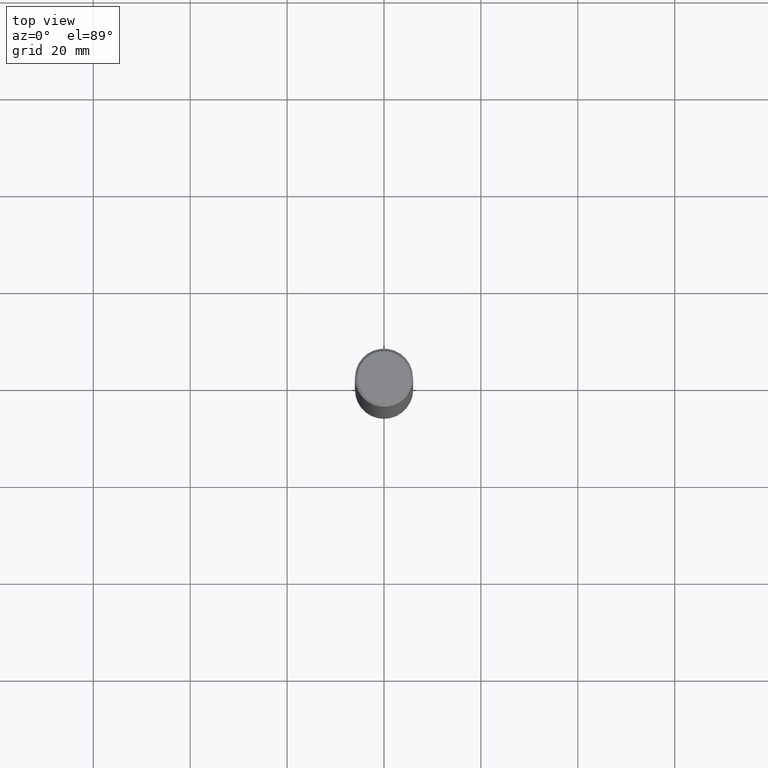
[diagram: clean part render]
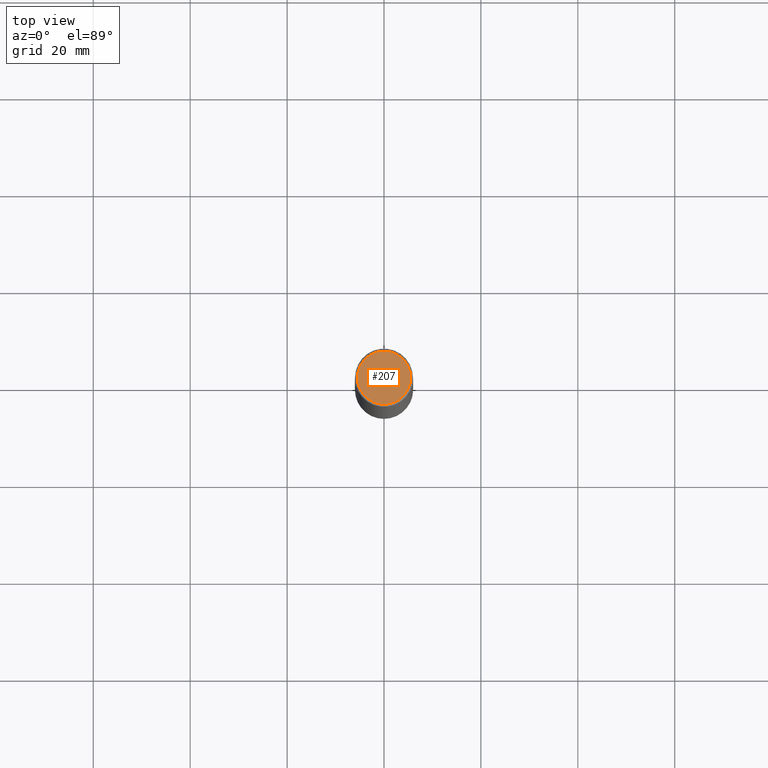
[diagram: same view with one face highlighted and labeled with its STEP entity id]
A machine part, top view. The second image highlights one B-rep face of the part: STEP entity #207.
In plain terms, the highlighted planar face has unit normal (0, -0, -1).
Its self-contained STEP definition (entity closure, byte-faithful):
#8 = DIRECTION ( 'NONE',  ( 2.438088387897960049E-29, -3.491481338843145188E-15, -1.000000000000000000 ) ) ;
#19 = EDGE_LOOP ( 'NONE', ( #152, #25 ) ) ;
#25 = ORIENTED_EDGE ( 'NONE', *, *, #53, .T. ) ;
#43 = CIRCLE ( 'NONE', #276, 0.2162000000000001421 ) ;
#53 = EDGE_CURVE ( 'NONE', #304, #371, #43, .T. ) ;
#73 = CARTESIAN_POINT ( 'NONE',  ( -0.2162000000000001421, 1.544631344304202170E-15, -1.835460370743283315E-16 ) ) ;
#102 = CARTESIAN_POINT ( 'NONE',  ( 4.488561081641443999E-45, -6.408475632635922003E-31, -1.835460370743176573E-16 ) ) ;
#127 = DIRECTION ( 'NONE',  ( -1.000000000000000000, 6.982962677686265922E-15, -4.876176775795935793E-29 ) ) ;
#143 = DIRECTION ( 'NONE',  ( -2.445468806185136597E-29, 3.491481338843145583E-15, 1.000000000000000000 ) ) ;
#152 = ORIENTED_EDGE ( 'NONE', *, *, #385, .T. ) ;
#168 = CARTESIAN_POINT ( 'NONE',  ( 1.509716530915771704E-15, 0.2162000000000001421, -8.466312839950473922E-16 ) ) ;
#171 = PLANE ( 'NONE',  #410 ) ;
#173 = CARTESIAN_POINT ( 'NONE',  ( 4.488561081641443999E-45, -6.408475632635922003E-31, -1.835460370743176573E-16 ) ) ;
#195 = FACE_OUTER_BOUND ( 'NONE', #19, .T. ) ;
#201 = CARTESIAN_POINT ( 'NONE',  ( 0.2162000000000001421, -1.586759460484352974E-15, -1.835460370743068351E-16 ) ) ;
#207 = ADVANCED_FACE ( 'NONE', ( #195 ), #171, .F. ) ;
#236 = DIRECTION ( 'NONE',  ( 1.000000000000000000, -6.982962677686266711E-15, 4.881916136609858652E-29 ) ) ;
#267 = AXIS2_PLACEMENT_3D ( 'NONE', #173, #143, #402 ) ;
#268 = DIRECTION ( 'NONE',  ( -2.445468806185136597E-29, 3.491481338843145583E-15, 1.000000000000000000 ) ) ;
#276 = AXIS2_PLACEMENT_3D ( 'NONE', #102, #268, #236 ) ;
#277 = CIRCLE ( 'NONE', #267, 0.2162000000000001421 ) ;
#304 = VERTEX_POINT ( 'NONE', #201 ) ;
#371 = VERTEX_POINT ( 'NONE', #73 ) ;
#385 = EDGE_CURVE ( 'NONE', #371, #304, #277, .T. ) ;
#402 = DIRECTION ( 'NONE',  ( 1.000000000000000000, -6.982962677686266711E-15, 4.881916136609858652E-29 ) ) ;
#410 = AXIS2_PLACEMENT_3D ( 'NONE', #168, #8, #127 ) ;